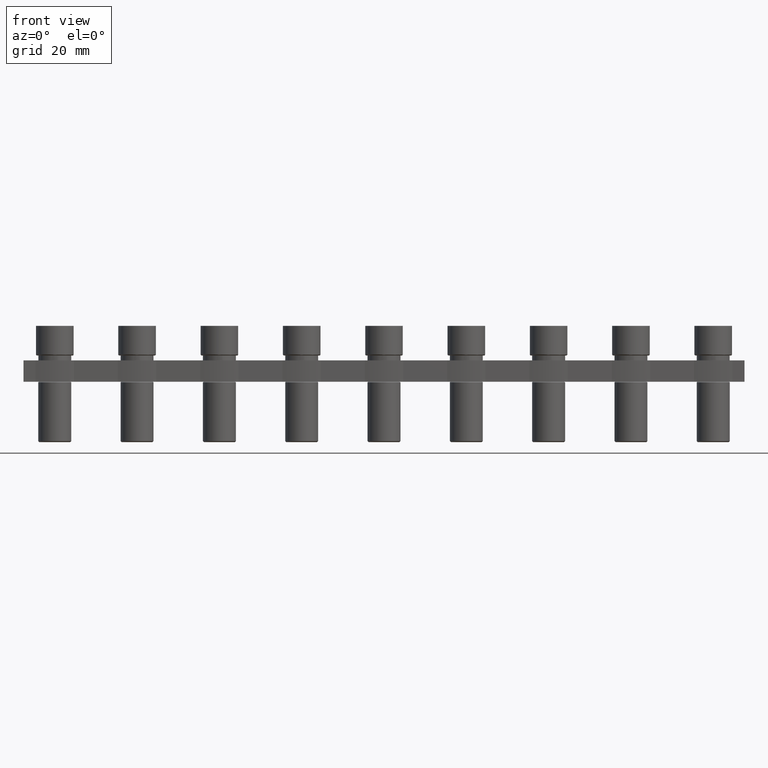
[diagram: clean part render]
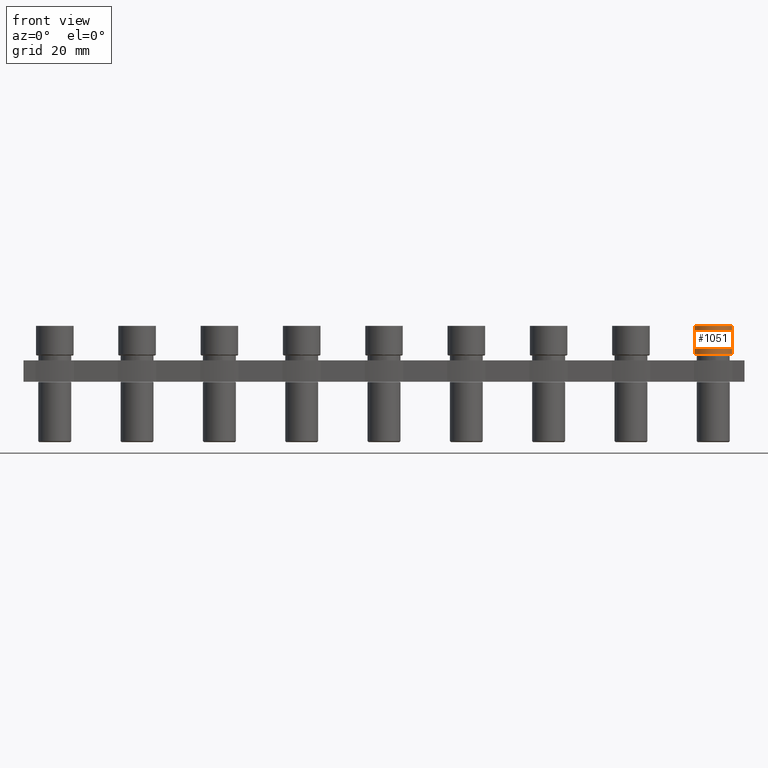
[diagram: same view with one face highlighted and labeled with its STEP entity id]
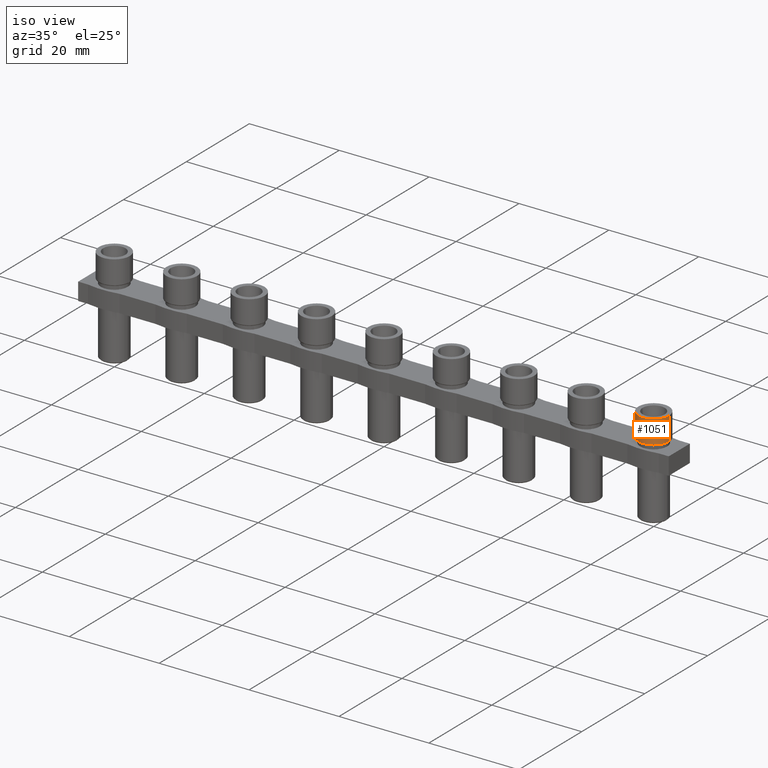
[diagram: same view with one face highlighted and labeled with its STEP entity id]
A machine part, front view. The second image highlights one B-rep face of the part: STEP entity #1051.
A second angle (iso view) of the same face is appended — the face is thin or edge-on in the first view.
In plain terms, the highlighted cylindrical surface (edge-blend (fillet) strip) has radius 3.425 mm, axis along (0, 0, -1).
Its self-contained STEP definition (entity closure, byte-faithful):
#443 = CARTESIAN_POINT ( 'NONE',  ( 120.0000000000016500, 4.260386751258183500E-013, 0.1999999999999996500 ) ) ;
#484 = DIRECTION ( 'NONE',  ( 0.0000000000000000000, 0.0000000000000000000, 1.000000000000000000 ) ) ;
#485 = DIRECTION ( 'NONE',  ( -1.000000000000000000, -2.491358183583763700E-016, 0.0000000000000000000 ) ) ;
#498 = LINE ( 'NONE', #523, #12393 ) ;
#523 = CARTESIAN_POINT ( 'NONE',  ( 116.5750000000016500, 4.245562226548790000E-013, 5.400000000000000400 ) ) ;
#528 = DIRECTION ( 'NONE',  ( 0.0000000000000000000, 0.0000000000000000000, -1.000000000000000000 ) ) ;
#1051 = ADVANCED_FACE ( 'NONE', ( #8268 ), #8255, .T. ) ;
#2079 = AXIS2_PLACEMENT_3D ( 'NONE', #8232, #8248, #8230 ) ;
#3973 = VERTEX_POINT ( 'NONE', #14177 ) ;
#3987 = VERTEX_POINT ( 'NONE', #14181 ) ;
#4033 = VERTEX_POINT ( 'NONE', #14203 ) ;
#4080 = VERTEX_POINT ( 'NONE', #14256 ) ;
#4431 = ORIENTED_EDGE ( 'NONE', *, *, #11602, .T. ) ;
#4484 = ORIENTED_EDGE ( 'NONE', *, *, #11663, .F. ) ;
#5646 = ORIENTED_EDGE ( 'NONE', *, *, #11620, .T. ) ;
#5651 = ORIENTED_EDGE ( 'NONE', *, *, #11685, .F. ) ;
#5770 = EDGE_LOOP ( 'NONE', ( #5651, #5646, #4431, #4484 ) ) ;
#8230 = DIRECTION ( 'NONE',  ( 1.000000000000000000, 2.491358183583763700E-016, 0.0000000000000000000 ) ) ;
#8232 = CARTESIAN_POINT ( 'NONE',  ( 120.0000000000016500, 4.258289543614643900E-013, 5.400000000000000400 ) ) ;
#8248 = DIRECTION ( 'NONE',  ( 0.0000000000000000000, 0.0000000000000000000, -1.000000000000000000 ) ) ;
#8255 = CYLINDRICAL_SURFACE ( 'NONE', #2079, 3.424999999999997600 ) ;
#8268 = FACE_OUTER_BOUND ( 'NONE', #5770, .T. ) ;
#11602 = EDGE_CURVE ( 'NONE', #3973, #3987, #12396, .T. ) ;
#11620 = EDGE_CURVE ( 'NONE', #4033, #3973, #498, .T. ) ;
#11663 = EDGE_CURVE ( 'NONE', #4080, #3987, #15763, .T. ) ;
#11685 = EDGE_CURVE ( 'NONE', #4033, #4080, #12533, .T. ) ;
#12393 = VECTOR ( 'NONE', #528, 1000.000000000000000 ) ;
#12396 = CIRCLE ( 'NONE', #12437, 3.424999999999997600 ) ;
#12437 = AXIS2_PLACEMENT_3D ( 'NONE', #443, #484, #485 ) ;
#12514 = VECTOR ( 'NONE', #15749, 1000.000000000000000 ) ;
#12526 = AXIS2_PLACEMENT_3D ( 'NONE', #15854, #15848, #15847 ) ;
#12533 = CIRCLE ( 'NONE', #12526, 3.424999999999997600 ) ;
#14177 = CARTESIAN_POINT ( 'NONE',  ( 116.5750000000016500, 4.245562226548790000E-013, 0.1999999999999996500 ) ) ;
#14181 = CARTESIAN_POINT ( 'NONE',  ( 123.4250000000016500, 4.266822445393418300E-013, 0.1999999999999996500 ) ) ;
#14203 = CARTESIAN_POINT ( 'NONE',  ( 116.5750000000016500, 4.245562226548790000E-013, 5.400000000000000400 ) ) ;
#14256 = CARTESIAN_POINT ( 'NONE',  ( 123.4250000000016500, 4.266822445393418300E-013, 5.400000000000000400 ) ) ;
#15749 = DIRECTION ( 'NONE',  ( 0.0000000000000000000, 0.0000000000000000000, -1.000000000000000000 ) ) ;
#15763 = LINE ( 'NONE', #15774, #12514 ) ;
#15774 = CARTESIAN_POINT ( 'NONE',  ( 123.4250000000016500, 4.266822445393418300E-013, 5.400000000000000400 ) ) ;
#15847 = DIRECTION ( 'NONE',  ( 1.000000000000000000, 2.491358183583763700E-016, 0.0000000000000000000 ) ) ;
#15848 = DIRECTION ( 'NONE',  ( -0.0000000000000000000, -0.0000000000000000000, 1.000000000000000000 ) ) ;
#15854 = CARTESIAN_POINT ( 'NONE',  ( 120.0000000000016500, 4.258289543614643900E-013, 5.400000000000000400 ) ) ;